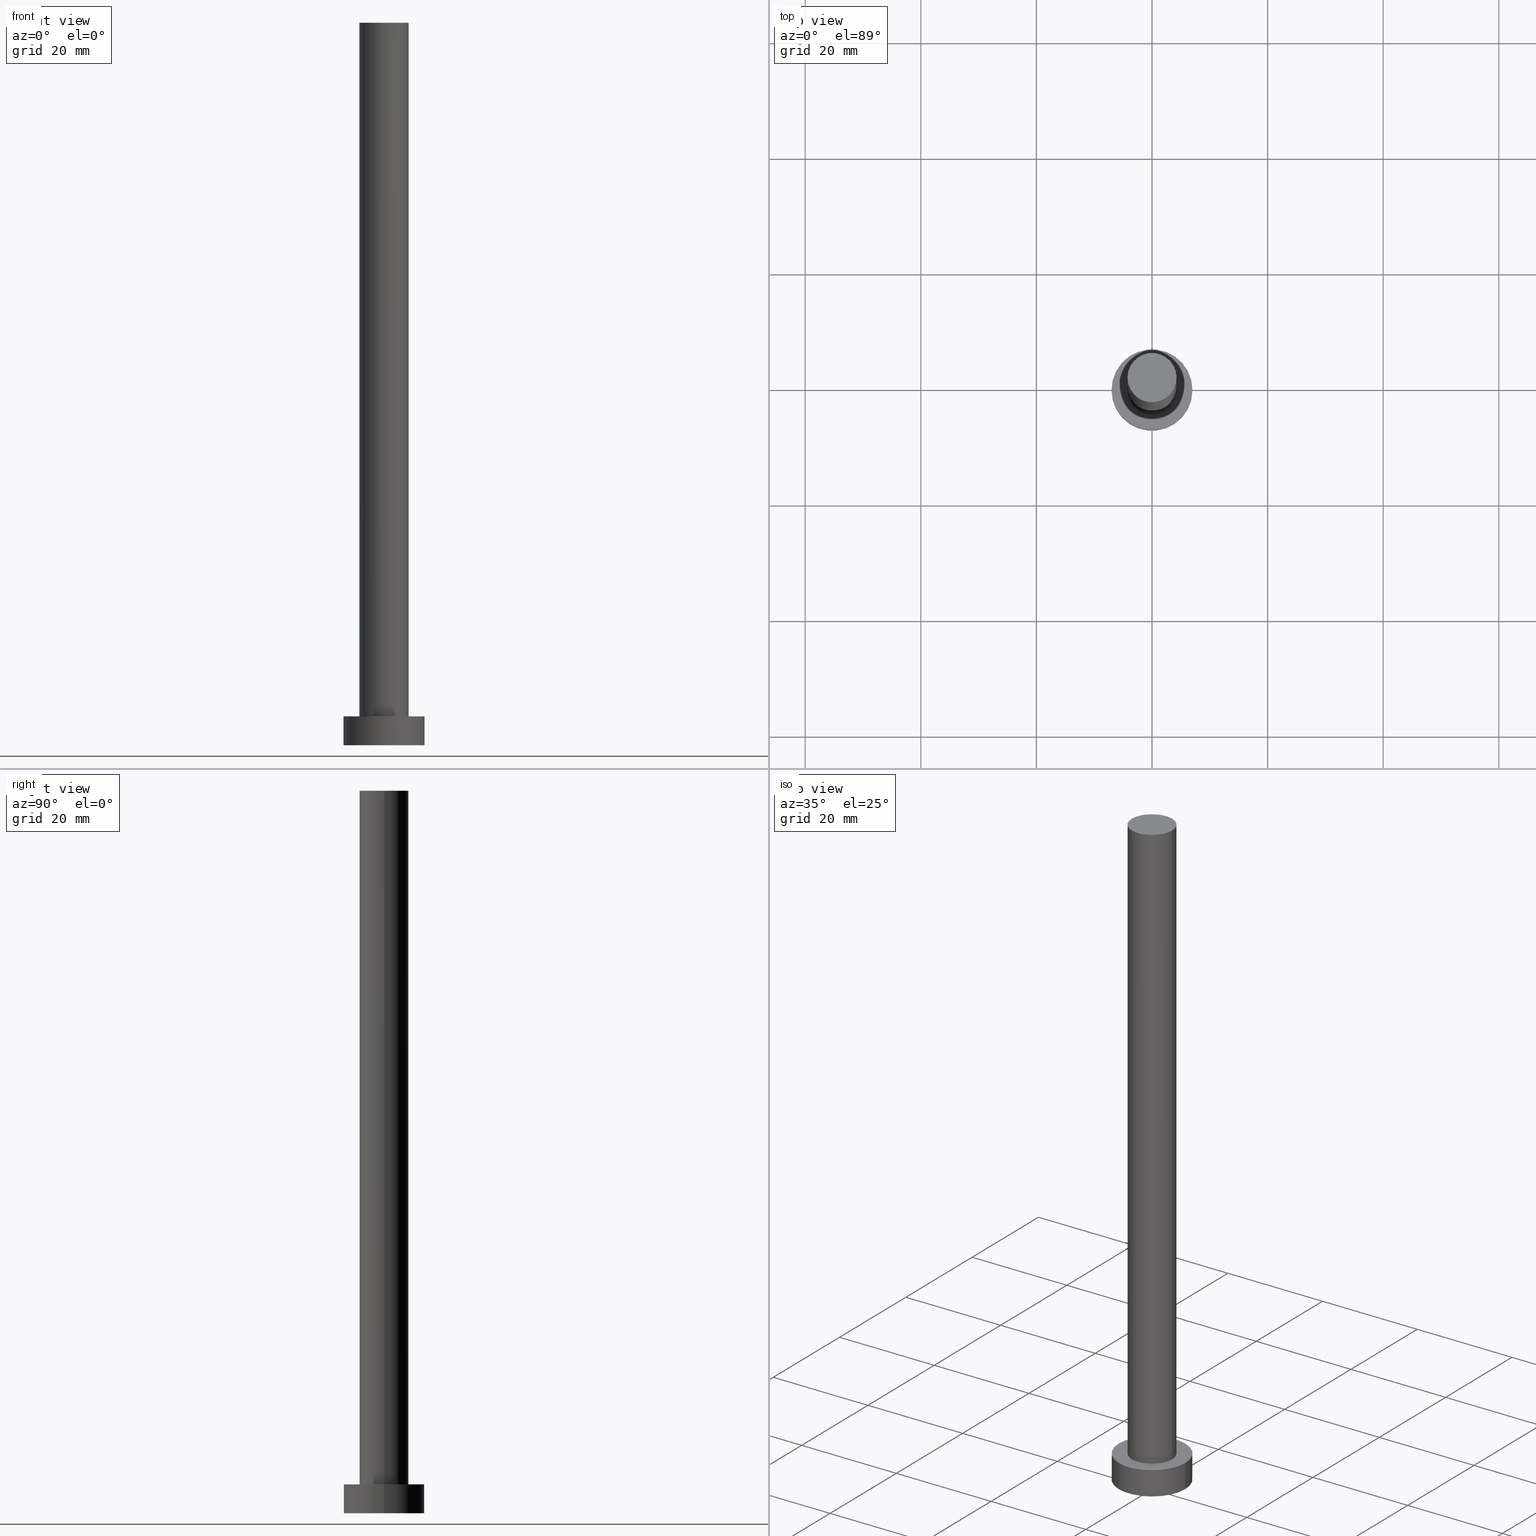
[diagram: canonical four-view strip — front | top / right | iso, engineering-drawing reading convention]
A machine part, canonical four-view strip (front | top / right | iso — engineering-drawing reading convention). The complete STEP part file that produces these views, byte-faithful:
ISO-10303-21;
HEADER;
FILE_DESCRIPTION (( 'STEP AP203' ),
    '1' );
FILE_NAME ('cc0c.STEP',
    '2026-02-06T12:39:23',
    ( '' ),
    ( '' ),
    'SwSTEP 2.0',
    'SolidWorks 2019',
    '' );
FILE_SCHEMA (( 'CONFIG_CONTROL_DESIGN' ));
ENDSEC;

DATA;
#1 = CIRCLE ( 'NONE', #147, 7.000000000000000000 ) ;
#2 = PLANE ( 'NONE',  #158 ) ;
#3 = CYLINDRICAL_SURFACE ( 'NONE', #34, 7.000000000000000000 ) ;
#4 = DIRECTION ( 'NONE',  ( -0.000000000000000000, -0.000000000000000000, -1.000000000000000000 ) ) ;
#5 = CARTESIAN_POINT ( 'NONE',  ( 7.000000000000000000, 8.572527594031473190E-16, 5.000000000000000000 ) ) ;
#6 = DIRECTION ( 'NONE',  ( 0.000000000000000000, 0.000000000000000000, 1.000000000000000000 ) ) ;
#7 = DATE_TIME_ROLE ( 'creation_date' ) ;
#8 = CC_DESIGN_APPROVAL ( #103, ( #32 ) ) ;
#9 = APPROVAL_ROLE ( '' ) ;
#10 = COORDINATED_UNIVERSAL_TIME_OFFSET ( 1, 0, .AHEAD. ) ;
#11 = PERSON_AND_ORGANIZATION ( #15, #216 ) ;
#12 = CC_DESIGN_PERSON_AND_ORGANIZATION_ASSIGNMENT ( #208, #109, ( #38 ) ) ;
#13 = EDGE_CURVE ( 'NONE', #56, #19, #211, .T. ) ;
#14 = FACE_OUTER_BOUND ( 'NONE', #119, .T. ) ;
#15 = PERSON ( 'NEUR�EN�', 'NEUR�EN�', 'NEUR�EN�', ('NEUR�EN�'), ('NEUR�EN�'), ('NEUR�EN�') ) ;
#16 = ORIENTED_EDGE ( 'NONE', *, *, #59, .T. ) ;
#17 = APPROVAL_PERSON_ORGANIZATION ( #130, #124, #171 ) ;
#18 = ORIENTED_EDGE ( 'NONE', *, *, #59, .F. ) ;
#19 = VERTEX_POINT ( 'NONE', #96 ) ;
#20 = ORIENTED_EDGE ( 'NONE', *, *, #40, .F. ) ;
#21 = AXIS2_PLACEMENT_3D ( 'NONE', #138, #134, #157 ) ;
#22 = DIRECTION ( 'NONE',  ( 0.000000000000000000, 0.000000000000000000, 1.000000000000000000 ) ) ;
#23 = FACE_OUTER_BOUND ( 'NONE', #156, .T. ) ;
#24 = PLANE ( 'NONE',  #61 ) ;
#25 = CC_DESIGN_PERSON_AND_ORGANIZATION_ASSIGNMENT ( #230, #209, ( #38 ) ) ;
#26 = ADVANCED_FACE ( 'NONE', ( #217 ), #159, .T. ) ;
#27 = SECURITY_CLASSIFICATION_LEVEL ( 'unclassified' ) ;
#28 = CIRCLE ( 'NONE', #195, 4.250000000000000000 ) ;
#29 = APPLICATION_CONTEXT ( 'configuration controlled 3d designs of mechanical parts and assemblies' ) ;
#30 = DIRECTION ( 'NONE',  ( 1.000000000000000000, 0.000000000000000000, 0.000000000000000000 ) ) ;
#31 = DATE_AND_TIME ( #131, #92 ) ;
#32 = PRODUCT_DEFINITION ( 'NEZN�M�', '', #38, #226 ) ;
#33 = AXIS2_PLACEMENT_3D ( 'NONE', #142, #121, #63 ) ;
#34 = AXIS2_PLACEMENT_3D ( 'NONE', #100, #166, #200 ) ;
#35 = VERTEX_POINT ( 'NONE', #98 ) ;
#36 = EDGE_LOOP ( 'NONE', ( #93, #238 ) ) ;
#37 = ORIENTED_EDGE ( 'NONE', *, *, #170, .F. ) ;
#38 = PRODUCT_DEFINITION_FORMATION_WITH_SPECIFIED_SOURCE ( 'LIBOVOLN�', '', #105, .NOT_KNOWN. ) ;
#39 = VERTEX_POINT ( 'NONE', #234 ) ;
#40 = EDGE_CURVE ( 'NONE', #39, #135, #28, .T. ) ;
#41 = ORIENTED_EDGE ( 'NONE', *, *, #251, .T. ) ;
#42 = ORIENTED_EDGE ( 'NONE', *, *, #250, .F. ) ;
#43 = LINE ( 'NONE', #45, #55 ) ;
#44 = CLOSED_SHELL ( 'NONE', ( #62, #26, #193, #240, #206, #218, #86 ) ) ;
#45 = CARTESIAN_POINT ( 'NONE',  ( -4.250000000000000000, 0.000000000000000000, 125.0000000000000000 ) ) ;
#46 = CARTESIAN_POINT ( 'NONE',  ( 0.000000000000000000, 0.000000000000000000, 5.000000000000000000 ) ) ;
#47 = APPROVAL_DATE_TIME ( #186, #103 ) ;
#48 = COORDINATED_UNIVERSAL_TIME_OFFSET ( 1, 0, .AHEAD. ) ;
#49 = CC_DESIGN_PERSON_AND_ORGANIZATION_ASSIGNMENT ( #207, #110, ( #32 ) ) ;
#50 = COORDINATED_UNIVERSAL_TIME_OFFSET ( 1, 0, .AHEAD. ) ;
#51 = ORIENTED_EDGE ( 'NONE', *, *, #170, .T. ) ;
#52 = CARTESIAN_POINT ( 'NONE',  ( 0.000000000000000000, 0.000000000000000000, 0.000000000000000000 ) ) ;
#53 = CARTESIAN_POINT ( 'NONE',  ( -7.000000000000000000, 0.000000000000000000, 5.000000000000000000 ) ) ;
#54 = CARTESIAN_POINT ( 'NONE',  ( 0.000000000000000000, 0.000000000000000000, 5.000000000000000000 ) ) ;
#55 = VECTOR ( 'NONE', #241, 1000.000000000000000 ) ;
#56 = VERTEX_POINT ( 'NONE', #53 ) ;
#57 = ORIENTED_EDGE ( 'NONE', *, *, #88, .T. ) ;
#58 = DIRECTION ( 'NONE',  ( -0.000000000000000000, -0.000000000000000000, -1.000000000000000000 ) ) ;
#59 = EDGE_CURVE ( 'NONE', #35, #215, #69, .T. ) ;
#60 = DIRECTION ( 'NONE',  ( 1.000000000000000000, 0.000000000000000000, 0.000000000000000000 ) ) ;
#61 = AXIS2_PLACEMENT_3D ( 'NONE', #183, #101, #82 ) ;
#62 = ADVANCED_FACE ( 'NONE', ( #14 ), #74, .T. ) ;
#63 = DIRECTION ( 'NONE',  ( 1.000000000000000000, 0.000000000000000000, 0.000000000000000000 ) ) ;
#64 = FACE_OUTER_BOUND ( 'NONE', #94, .T. ) ;
#65 =( NAMED_UNIT ( * ) PLANE_ANGLE_UNIT ( ) SI_UNIT ( $, .RADIAN. ) );
#66 = VECTOR ( 'NONE', #221, 1000.000000000000000 ) ;
#67 = COORDINATED_UNIVERSAL_TIME_OFFSET ( 1, 0, .AHEAD. ) ;
#68 = DIRECTION ( 'NONE',  ( 0.000000000000000000, 0.000000000000000000, 1.000000000000000000 ) ) ;
#69 = CIRCLE ( 'NONE', #106, 4.250000000000000000 ) ;
#70 = APPROVAL_STATUS ( 'not_yet_approved' ) ;
#71 = APPROVAL_PERSON_ORGANIZATION ( #127, #75, #150 ) ;
#72 = ORIENTED_EDGE ( 'NONE', *, *, #40, .T. ) ;
#73 = ORIENTED_EDGE ( 'NONE', *, *, #213, .F. ) ;
#74 = CYLINDRICAL_SURFACE ( 'NONE', #151, 4.250000000000000000 ) ;
#75 = APPROVAL ( #188, 'NEUR�EN�' ) ;
#76 = DIRECTION ( 'NONE',  ( 0.000000000000000000, 0.000000000000000000, 1.000000000000000000 ) ) ;
#77 = CIRCLE ( 'NONE', #89, 4.250000000000000000 ) ;
#78 = CARTESIAN_POINT ( 'NONE',  ( 0.000000000000000000, 0.000000000000000000, 125.0000000000000000 ) ) ;
#79 = CARTESIAN_POINT ( 'NONE',  ( 0.000000000000000000, 0.000000000000000000, 0.000000000000000000 ) ) ;
#80 = DIRECTION ( 'NONE',  ( 1.000000000000000000, 0.000000000000000000, 0.000000000000000000 ) ) ;
#81 = LOCAL_TIME ( 13, 39, 23.00000000000000000, #50 ) ;
#82 = DIRECTION ( 'NONE',  ( 1.000000000000000000, 0.000000000000000000, -0.000000000000000000 ) ) ;
#83 = DIRECTION ( 'NONE',  ( 1.000000000000000000, 0.000000000000000000, -0.000000000000000000 ) ) ;
#84 = VECTOR ( 'NONE', #58, 1000.000000000000000 ) ;
#85 = CALENDAR_DATE ( 2026, 6, 2 ) ;
#86 = ADVANCED_FACE ( 'NONE', ( #255 ), #2, .T. ) ;
#87 = SHAPE_DEFINITION_REPRESENTATION ( #128, #140 ) ;
#88 = EDGE_CURVE ( 'NONE', #91, #233, #111, .T. ) ;
#89 = AXIS2_PLACEMENT_3D ( 'NONE', #46, #22, #60 ) ;
#90 = MECHANICAL_CONTEXT ( 'NONE', #95, 'mechanical' ) ;
#91 = VERTEX_POINT ( 'NONE', #164 ) ;
#92 = LOCAL_TIME ( 13, 39, 23.00000000000000000, #48 ) ;
#93 = ORIENTED_EDGE ( 'NONE', *, *, #88, .F. ) ;
#94 = EDGE_LOOP ( 'NONE', ( #113, #37, #219, #136 ) ) ;
#95 = APPLICATION_CONTEXT ( 'configuration controlled 3d designs of mechanical parts and assemblies' ) ;
#96 = CARTESIAN_POINT ( 'NONE',  ( 7.000000000000000000, 8.572527594031473190E-16, 5.000000000000000000 ) ) ;
#97 = AXIS2_PLACEMENT_3D ( 'NONE', #52, #214, #104 ) ;
#98 = CARTESIAN_POINT ( 'NONE',  ( 4.250000000000000000, 5.204748896376250699E-16, 5.000000000000000000 ) ) ;
#99 = CARTESIAN_POINT ( 'NONE',  ( 0.000000000000000000, 0.000000000000000000, 0.000000000000000000 ) ) ;
#100 = CARTESIAN_POINT ( 'NONE',  ( 0.000000000000000000, 0.000000000000000000, 5.000000000000000000 ) ) ;
#101 = DIRECTION ( 'NONE',  ( 0.000000000000000000, 0.000000000000000000, 1.000000000000000000 ) ) ;
#102 = LOCAL_TIME ( 13, 39, 23.00000000000000000, #67 ) ;
#103 = APPROVAL ( #187, 'NEUR�EN�' ) ;
#104 = DIRECTION ( 'NONE',  ( 1.000000000000000000, 0.000000000000000000, 0.000000000000000000 ) ) ;
#105 = PRODUCT ( 'cc0c', 'cc0c', '', ( #90 ) ) ;
#106 = AXIS2_PLACEMENT_3D ( 'NONE', #54, #76, #194 ) ;
#107 = CC_DESIGN_PERSON_AND_ORGANIZATION_ASSIGNMENT ( #11, #189, ( #163 ) ) ;
#108 = DATE_AND_TIME ( #85, #81 ) ;
#109 = PERSON_AND_ORGANIZATION_ROLE ( 'design_supplier' ) ;
#110 = PERSON_AND_ORGANIZATION_ROLE ( 'creator' ) ;
#111 = CIRCLE ( 'NONE', #97, 7.000000000000000000 ) ;
#112 = PRODUCT_RELATED_PRODUCT_CATEGORY ( 'detail', '', ( #105 ) ) ;
#113 = ORIENTED_EDGE ( 'NONE', *, *, #152, .F. ) ;
#114 = ORIENTED_EDGE ( 'NONE', *, *, #13, .T. ) ;
#115 = AXIS2_PLACEMENT_3D ( 'NONE', #231, #154, #117 ) ;
#116 = EDGE_LOOP ( 'NONE', ( #51, #72 ) ) ;
#117 = DIRECTION ( 'NONE',  ( 1.000000000000000000, 0.000000000000000000, 0.000000000000000000 ) ) ;
#118 = ORIENTED_EDGE ( 'NONE', *, *, #13, .F. ) ;
#119 = EDGE_LOOP ( 'NONE', ( #20, #175, #16, #196 ) ) ;
#120 = AXIS2_PLACEMENT_3D ( 'NONE', #248, #68, #30 ) ;
#121 = DIRECTION ( 'NONE',  ( 0.000000000000000000, 0.000000000000000000, 1.000000000000000000 ) ) ;
#122 = PLANE ( 'NONE',  #132 ) ;
#123 = DIRECTION ( 'NONE',  ( 0.000000000000000000, 0.000000000000000000, 1.000000000000000000 ) ) ;
#124 = APPROVAL ( #70, 'NEUR�EN�' ) ;
#125 = CC_DESIGN_APPROVAL ( #75, ( #163 ) ) ;
#126 = LINE ( 'NONE', #5, #84 ) ;
#127 = PERSON_AND_ORGANIZATION ( #15, #216 ) ;
#128 = PRODUCT_DEFINITION_SHAPE ( 'NONE', 'NONE',  #32 ) ;
#129 = APPLICATION_PROTOCOL_DEFINITION ( 'international standard', 'config_control_design', 1994, #95 ) ;
#130 = PERSON_AND_ORGANIZATION ( #15, #216 ) ;
#131 = CALENDAR_DATE ( 2026, 6, 2 ) ;
#132 = AXIS2_PLACEMENT_3D ( 'NONE', #99, #6, #83 ) ;
#133 = DIRECTION ( 'NONE',  ( 0.000000000000000000, 0.000000000000000000, 1.000000000000000000 ) ) ;
#134 = DIRECTION ( 'NONE',  ( -0.000000000000000000, -0.000000000000000000, -1.000000000000000000 ) ) ;
#135 = VERTEX_POINT ( 'NONE', #242 ) ;
#136 = ORIENTED_EDGE ( 'NONE', *, *, #191, .T. ) ;
#137 = ORIENTED_EDGE ( 'NONE', *, *, #250, .T. ) ;
#138 = CARTESIAN_POINT ( 'NONE',  ( 0.000000000000000000, 0.000000000000000000, 5.000000000000000000 ) ) ;
#139 =( NAMED_UNIT ( * ) SI_UNIT ( $, .STERADIAN. ) SOLID_ANGLE_UNIT ( ) );
#140 = ADVANCED_BREP_SHAPE_REPRESENTATION ( 'cc0c', ( #161, #120 ), #232 ) ;
#141 = AXIS2_PLACEMENT_3D ( 'NONE', #79, #123, #80 ) ;
#142 = CARTESIAN_POINT ( 'NONE',  ( 0.000000000000000000, 0.000000000000000000, 125.0000000000000000 ) ) ;
#143 = FACE_BOUND ( 'NONE', #253, .T. ) ;
#144 = CC_DESIGN_PERSON_AND_ORGANIZATION_ASSIGNMENT ( #169, #148, ( #105 ) ) ;
#145 = DIRECTION ( 'NONE',  ( 0.000000000000000000, 0.000000000000000000, 1.000000000000000000 ) ) ;
#146 = APPROVAL_PERSON_ORGANIZATION ( #245, #103, #9 ) ;
#147 = AXIS2_PLACEMENT_3D ( 'NONE', #165, #145, #225 ) ;
#148 = PERSON_AND_ORGANIZATION_ROLE ( 'design_owner' ) ;
#149 = DATE_AND_TIME ( #246, #102 ) ;
#150 = APPROVAL_ROLE ( '' ) ;
#151 = AXIS2_PLACEMENT_3D ( 'NONE', #179, #197, #177 ) ;
#152 = EDGE_CURVE ( 'NONE', #39, #35, #184, .T. ) ;
#153 = LOCAL_TIME ( 13, 39, 23.00000000000000000, #205 ) ;
#154 = DIRECTION ( 'NONE',  ( 0.000000000000000000, 0.000000000000000000, 1.000000000000000000 ) ) ;
#155 = CC_DESIGN_DATE_AND_TIME_ASSIGNMENT ( #149, #7, ( #32 ) ) ;
#156 = EDGE_LOOP ( 'NONE', ( #42, #118, #198, #57 ) ) ;
#157 = DIRECTION ( 'NONE',  ( -1.000000000000000000, 0.000000000000000000, 0.000000000000000000 ) ) ;
#158 = AXIS2_PLACEMENT_3D ( 'NONE', #78, #212, #173 ) ;
#159 = CYLINDRICAL_SURFACE ( 'NONE', #21, 7.000000000000000000 ) ;
#160 = EDGE_CURVE ( 'NONE', #135, #215, #43, .T. ) ;
#161 = MANIFOLD_SOLID_BREP ( 'P�idat vysunut�m3', #44 ) ;
#162 = CARTESIAN_POINT ( 'NONE',  ( 0.000000000000000000, 0.000000000000000000, 125.0000000000000000 ) ) ;
#163 = SECURITY_CLASSIFICATION ( '', '', #27 ) ;
#164 = CARTESIAN_POINT ( 'NONE',  ( -7.000000000000000000, 0.000000000000000000, 0.000000000000000000 ) ) ;
#165 = CARTESIAN_POINT ( 'NONE',  ( 0.000000000000000000, 0.000000000000000000, 5.000000000000000000 ) ) ;
#166 = DIRECTION ( 'NONE',  ( -0.000000000000000000, -0.000000000000000000, -1.000000000000000000 ) ) ;
#167 = APPLICATION_PROTOCOL_DEFINITION ( 'international standard', 'config_control_design', 1994, #29 ) ;
#168 = VECTOR ( 'NONE', #201, 1000.000000000000000 ) ;
#169 = PERSON_AND_ORGANIZATION ( #15, #216 ) ;
#170 = EDGE_CURVE ( 'NONE', #135, #39, #244, .T. ) ;
#171 = APPROVAL_ROLE ( '' ) ;
#172 = DATE_TIME_ROLE ( 'classification_date' ) ;
#173 = DIRECTION ( 'NONE',  ( 1.000000000000000000, 0.000000000000000000, -0.000000000000000000 ) ) ;
#174 = AXIS2_PLACEMENT_3D ( 'NONE', #162, #4, #239 ) ;
#175 = ORIENTED_EDGE ( 'NONE', *, *, #152, .T. ) ;
#176 = EDGE_LOOP ( 'NONE', ( #114, #41 ) ) ;
#177 = DIRECTION ( 'NONE',  ( -1.000000000000000000, 0.000000000000000000, 0.000000000000000000 ) ) ;
#178 = LOCAL_TIME ( 13, 39, 23.00000000000000000, #10 ) ;
#179 = CARTESIAN_POINT ( 'NONE',  ( 0.000000000000000000, 0.000000000000000000, 125.0000000000000000 ) ) ;
#180 = FACE_OUTER_BOUND ( 'NONE', #36, .T. ) ;
#181 = CYLINDRICAL_SURFACE ( 'NONE', #174, 4.250000000000000000 ) ;
#182 = UNCERTAINTY_MEASURE_WITH_UNIT (LENGTH_MEASURE( 1.000000000000000082E-05 ), #204, 'distance_accuracy_value', 'NONE');
#183 = CARTESIAN_POINT ( 'NONE',  ( 0.000000000000000000, 0.000000000000000000, 5.000000000000000000 ) ) ;
#184 = LINE ( 'NONE', #223, #66 ) ;
#185 = CARTESIAN_POINT ( 'NONE',  ( -7.000000000000000000, 0.000000000000000000, 5.000000000000000000 ) ) ;
#186 = DATE_AND_TIME ( #228, #178 ) ;
#187 = APPROVAL_STATUS ( 'not_yet_approved' ) ;
#188 = APPROVAL_STATUS ( 'not_yet_approved' ) ;
#189 = PERSON_AND_ORGANIZATION_ROLE ( 'classification_officer' ) ;
#190 = CALENDAR_DATE ( 2026, 6, 2 ) ;
#191 = EDGE_CURVE ( 'NONE', #215, #35, #77, .T. ) ;
#192 = EDGE_LOOP ( 'NONE', ( #237, #137, #220, #73 ) ) ;
#193 = ADVANCED_FACE ( 'NONE', ( #23 ), #3, .T. ) ;
#194 = DIRECTION ( 'NONE',  ( 1.000000000000000000, 0.000000000000000000, 0.000000000000000000 ) ) ;
#195 = AXIS2_PLACEMENT_3D ( 'NONE', #254, #133, #236 ) ;
#196 = ORIENTED_EDGE ( 'NONE', *, *, #160, .F. ) ;
#197 = DIRECTION ( 'NONE',  ( -0.000000000000000000, -0.000000000000000000, -1.000000000000000000 ) ) ;
#198 = ORIENTED_EDGE ( 'NONE', *, *, #213, .T. ) ;
#199 = EDGE_CURVE ( 'NONE', #233, #91, #203, .T. ) ;
#200 = DIRECTION ( 'NONE',  ( -1.000000000000000000, 0.000000000000000000, 0.000000000000000000 ) ) ;
#201 = DIRECTION ( 'NONE',  ( -0.000000000000000000, -0.000000000000000000, -1.000000000000000000 ) ) ;
#202 = LINE ( 'NONE', #185, #168 ) ;
#203 = CIRCLE ( 'NONE', #141, 7.000000000000000000 ) ;
#204 =( LENGTH_UNIT ( ) NAMED_UNIT ( * ) SI_UNIT ( .MILLI., .METRE. ) );
#205 = COORDINATED_UNIVERSAL_TIME_OFFSET ( 1, 0, .AHEAD. ) ;
#206 = ADVANCED_FACE ( 'NONE', ( #180 ), #122, .F. ) ;
#207 = PERSON_AND_ORGANIZATION ( #15, #216 ) ;
#208 = PERSON_AND_ORGANIZATION ( #15, #216 ) ;
#209 = PERSON_AND_ORGANIZATION_ROLE ( 'creator' ) ;
#210 = APPROVAL_DATE_TIME ( #31, #75 ) ;
#211 = CIRCLE ( 'NONE', #115, 7.000000000000000000 ) ;
#212 = DIRECTION ( 'NONE',  ( 0.000000000000000000, 0.000000000000000000, 1.000000000000000000 ) ) ;
#213 = EDGE_CURVE ( 'NONE', #56, #91, #202, .T. ) ;
#214 = DIRECTION ( 'NONE',  ( 0.000000000000000000, 0.000000000000000000, 1.000000000000000000 ) ) ;
#215 = VERTEX_POINT ( 'NONE', #227 ) ;
#216 = ORGANIZATION ( 'NEUR�EN�', 'NEUR�EN�', '' ) ;
#217 = FACE_OUTER_BOUND ( 'NONE', #192, .T. ) ;
#218 = ADVANCED_FACE ( 'NONE', ( #64 ), #181, .T. ) ;
#219 = ORIENTED_EDGE ( 'NONE', *, *, #160, .T. ) ;
#220 = ORIENTED_EDGE ( 'NONE', *, *, #199, .T. ) ;
#221 = DIRECTION ( 'NONE',  ( -0.000000000000000000, -0.000000000000000000, -1.000000000000000000 ) ) ;
#222 = CC_DESIGN_SECURITY_CLASSIFICATION ( #163, ( #38 ) ) ;
#223 = CARTESIAN_POINT ( 'NONE',  ( 4.250000000000000000, 5.204748896376250699E-16, 125.0000000000000000 ) ) ;
#224 = FACE_OUTER_BOUND ( 'NONE', #176, .T. ) ;
#225 = DIRECTION ( 'NONE',  ( 1.000000000000000000, 0.000000000000000000, 0.000000000000000000 ) ) ;
#226 = DESIGN_CONTEXT ( 'detailed design', #29, 'design' ) ;
#227 = CARTESIAN_POINT ( 'NONE',  ( -4.250000000000000000, 0.000000000000000000, 5.000000000000000000 ) ) ;
#228 = CALENDAR_DATE ( 2026, 6, 2 ) ;
#229 = DATE_AND_TIME ( #190, #153 ) ;
#230 = PERSON_AND_ORGANIZATION ( #15, #216 ) ;
#231 = CARTESIAN_POINT ( 'NONE',  ( 0.000000000000000000, 0.000000000000000000, 5.000000000000000000 ) ) ;
#232 =( GEOMETRIC_REPRESENTATION_CONTEXT ( 3 ) GLOBAL_UNCERTAINTY_ASSIGNED_CONTEXT ( ( #182 ) ) GLOBAL_UNIT_ASSIGNED_CONTEXT ( ( #204, #65, #139 ) ) REPRESENTATION_CONTEXT ( 'NONE', 'WORKASPACE' ) );
#233 = VERTEX_POINT ( 'NONE', #243 ) ;
#234 = CARTESIAN_POINT ( 'NONE',  ( 4.250000000000000000, 5.204748896376250699E-16, 125.0000000000000000 ) ) ;
#235 = CC_DESIGN_DATE_AND_TIME_ASSIGNMENT ( #108, #172, ( #163 ) ) ;
#236 = DIRECTION ( 'NONE',  ( 1.000000000000000000, 0.000000000000000000, 0.000000000000000000 ) ) ;
#237 = ORIENTED_EDGE ( 'NONE', *, *, #251, .F. ) ;
#238 = ORIENTED_EDGE ( 'NONE', *, *, #199, .F. ) ;
#239 = DIRECTION ( 'NONE',  ( -1.000000000000000000, 0.000000000000000000, 0.000000000000000000 ) ) ;
#240 = ADVANCED_FACE ( 'NONE', ( #143, #224 ), #24, .T. ) ;
#241 = DIRECTION ( 'NONE',  ( -0.000000000000000000, -0.000000000000000000, -1.000000000000000000 ) ) ;
#242 = CARTESIAN_POINT ( 'NONE',  ( -4.250000000000000000, 0.000000000000000000, 125.0000000000000000 ) ) ;
#243 = CARTESIAN_POINT ( 'NONE',  ( 7.000000000000000000, 8.572527594031473190E-16, 0.000000000000000000 ) ) ;
#244 = CIRCLE ( 'NONE', #33, 4.250000000000000000 ) ;
#245 = PERSON_AND_ORGANIZATION ( #15, #216 ) ;
#246 = CALENDAR_DATE ( 2026, 6, 2 ) ;
#247 = APPROVAL_DATE_TIME ( #229, #124 ) ;
#248 = CARTESIAN_POINT ( 'NONE',  ( 0.000000000000000000, 0.000000000000000000, 0.000000000000000000 ) ) ;
#249 = CC_DESIGN_APPROVAL ( #124, ( #38 ) ) ;
#250 = EDGE_CURVE ( 'NONE', #19, #233, #126, .T. ) ;
#251 = EDGE_CURVE ( 'NONE', #19, #56, #1, .T. ) ;
#252 = ORIENTED_EDGE ( 'NONE', *, *, #191, .F. ) ;
#253 = EDGE_LOOP ( 'NONE', ( #252, #18 ) ) ;
#254 = CARTESIAN_POINT ( 'NONE',  ( 0.000000000000000000, 0.000000000000000000, 125.0000000000000000 ) ) ;
#255 = FACE_OUTER_BOUND ( 'NONE', #116, .T. ) ;
ENDSEC;
END-ISO-10303-21;
